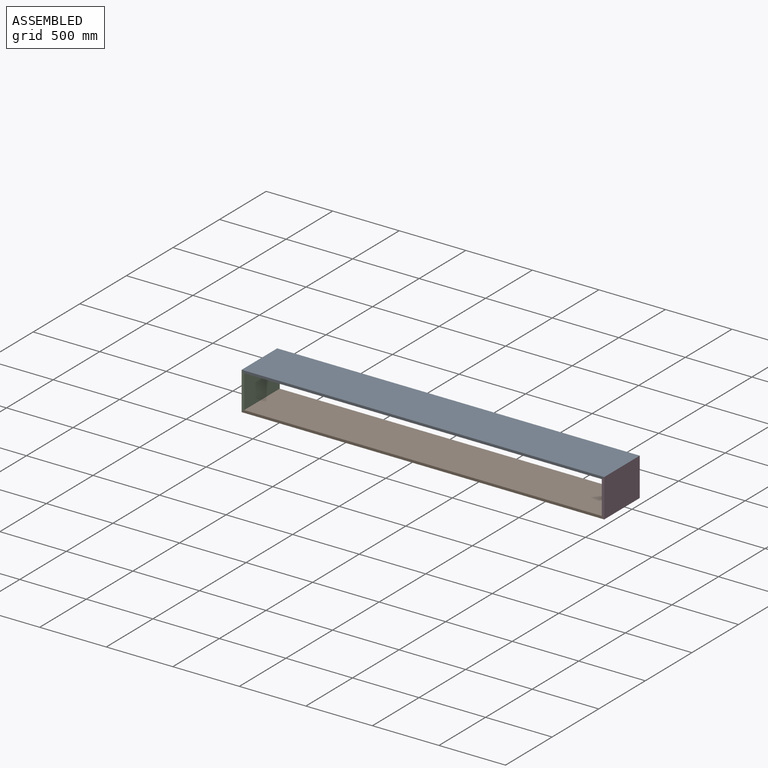
[diagram: assembled view]
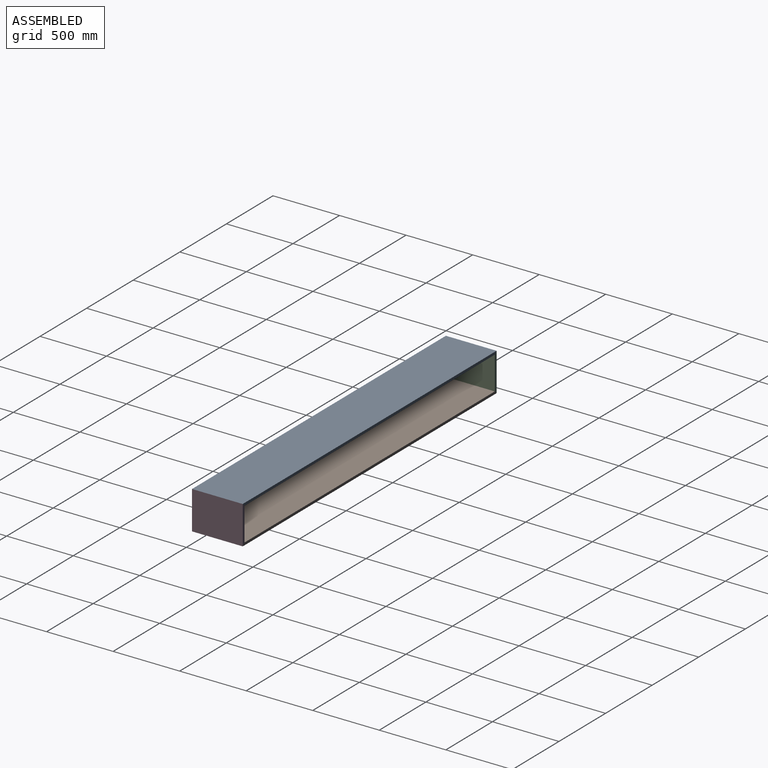
[diagram: assembled view, second angle]
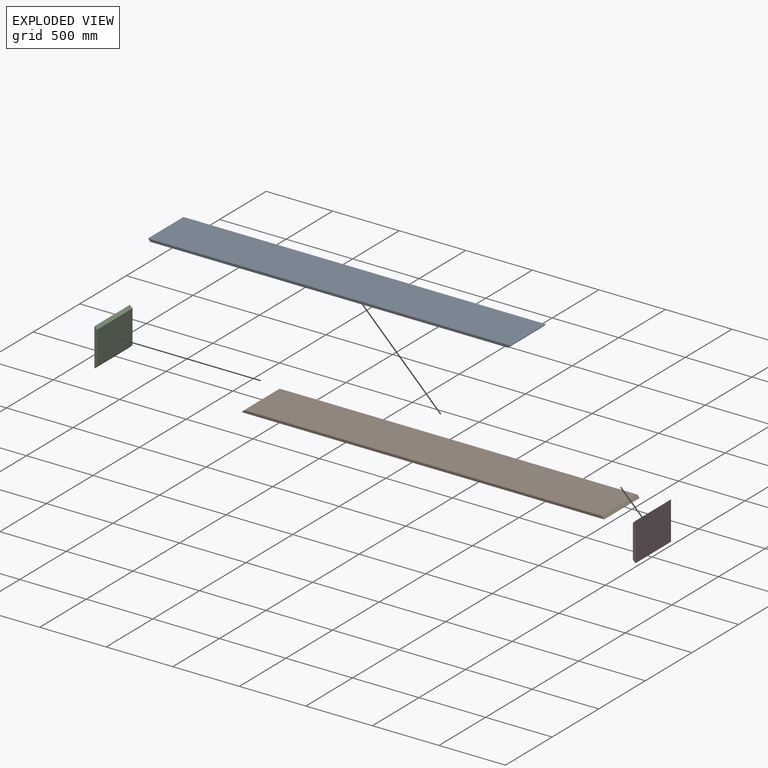
[diagram: exploded view]
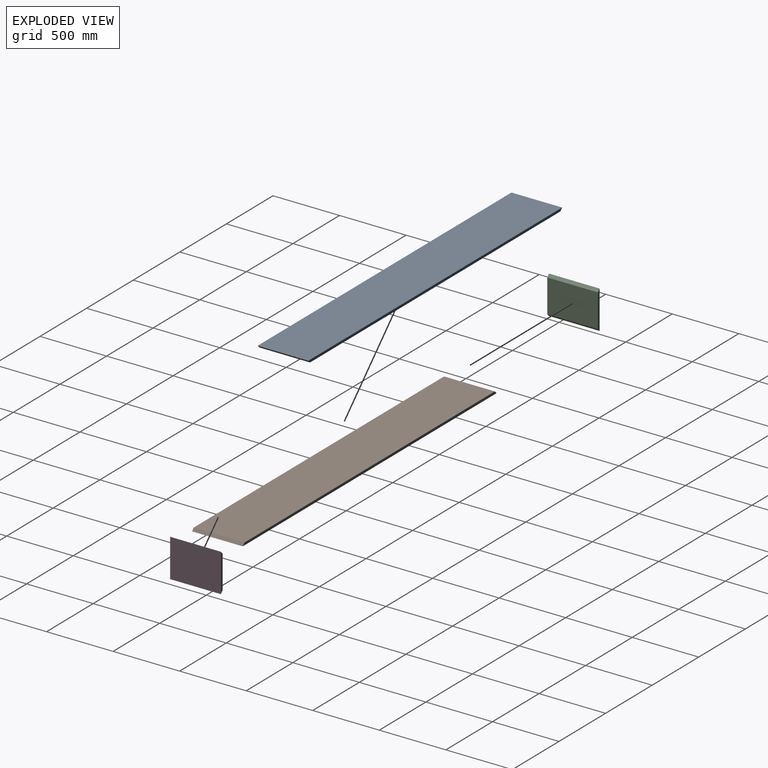
[diagram: exploded view, second angle]
ASSEMBLY  parts=4 mates=3
PART A: 6 faces, bbox 2724.2x381x19.1 mm
  f0: plane 2724.15x19.05mm, normal (0,-1,0), area 51532.2mm2, adj f1,f3,f4,f5
  f1: plane 2686.05x381mm, normal (0,0,-1), area 1023385mm2, adj f0,f2,f4,f5
  f2: plane 2724.15x19.05mm, normal (0,1,0), area 51532.2mm2, adj f1,f3,f4,f5
  f3: plane 2724.15x381mm, normal (0,0,1), area 1037901.1mm2, adj f0,f2,f4,f5
  f4: plane 381x19.05mm, normal (-0.71,0,-0.71), area 10264.4mm2, adj f0,f1,f2,f3
  f5: plane 381x19.05mm, normal (0.71,0,-0.71), area 10264.4mm2, adj f0,f1,f2,f3
PART B: same geometry as A
PART C: 6 faces, bbox 287.9x381x19.1 mm
  f0: plane 287.86x19.05mm, normal (0,-1,0), area 5120.8mm2, adj f1,f3,f4,f5
  f1: plane 381x249.76mm, normal (0,0,-1), area 95157.9mm2, adj f0,f2,f4,f5
  f2: plane 287.86x19.05mm, normal (0,1,0), area 5120.8mm2, adj f1,f3,f4,f5
  f3: plane 381x287.86mm, normal (0,0,1), area 109674mm2, adj f0,f2,f4,f5
  f4: plane 381x19.05mm, normal (-0.71,0,-0.71), area 10264.4mm2, adj f0,f1,f2,f3
  f5: plane 381x19.05mm, normal (0.71,0,-0.71), area 10264.4mm2, adj f0,f1,f2,f3
PART D: same geometry as C
PLACE A t=(-1914.59,-240.39,-305.73)mm
PLACE B rot(axis=(0,1,0),180deg) t=(809.56,-240.39,-555.49)mm
PLACE C rot(axis=(0,-1,0),90deg) t=(-1895.54,-240.39,-574.54)mm
PLACE D rot(axis=(0,1,0),90deg) t=(790.51,-240.39,-286.68)mm
MATE fastened B.f5 <-> C.f4  axis (-0.71,0,0.71) through (-1905.06,-49.89,-565.02)mm
MATE fastened A.f4 <-> C.f5  axis (-0.71,0,-0.71) through (-1905.06,-49.89,-296.21)mm
MATE fastened D.f4 <-> A.f5  axis (-0.71,0,0.71) through (800.04,-49.89,-296.21)mm
